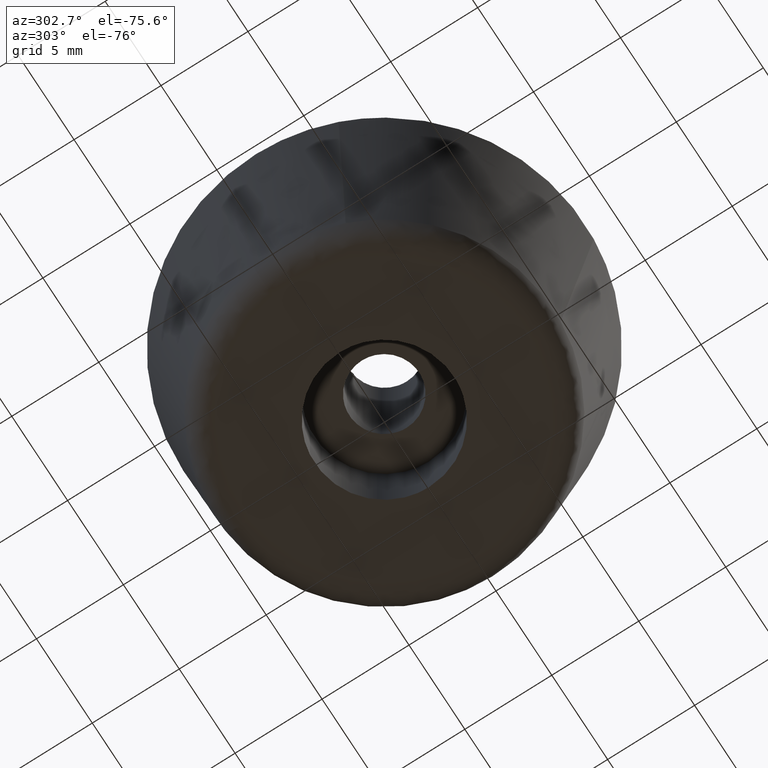
[diagram: clean part render]
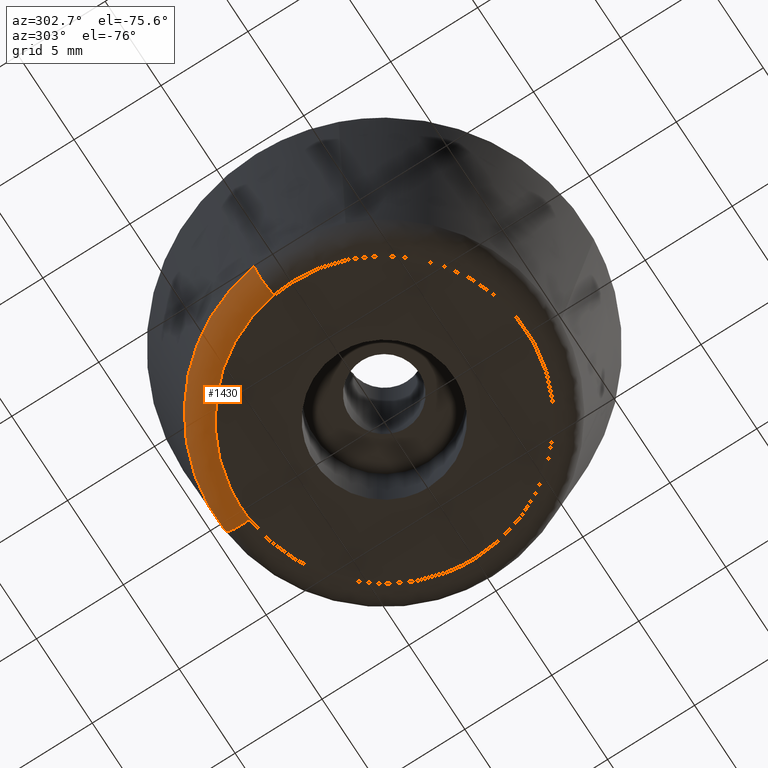
[diagram: same view with one face highlighted and labeled with its STEP entity id]
A machine part, auxiliary view. The second image highlights one B-rep face of the part: STEP entity #1430.
In plain terms, the highlighted face is a freeform B-spline surface patch.
Its self-contained STEP definition (entity closure, byte-faithful):
#851=CARTESIAN_POINT('',(0.783608279688495,9.652224928600838,1.287867999977965));
#852=VERTEX_POINT('',#851);
#866=CARTESIAN_POINT('',(-9.591609627675894,1.334358556978351,1.287867999980285));
#867=VERTEX_POINT('',#866);
#868=CARTESIAN_POINT('',(-9.591609627675894,1.334358556978351,1.287867999980285));
#869=CARTESIAN_POINT('',(-8.430032938582400,9.683980999999999,1.287868000000090));
#870=CARTESIAN_POINT('',(0.0,9.683980999999999,1.287868000000090));
#871=CARTESIAN_POINT('',(0.392447604251429,9.683981000000001,1.287868000000090));
#872=CARTESIAN_POINT('',(0.783608279688495,9.652224928600838,1.287867999977965));
#880=(BOUNDED_CURVE()B_SPLINE_CURVE(2,(#868,#869,#870,#871,#872),.UNSPECIFIED.,.F.,.U.)B_SPLINE_CURVE_WITH_KNOTS((3,2,3),(0.023792609107155,0.250000000000000,0.264091366876307),.UNSPECIFIED.)CURVE()GEOMETRIC_REPRESENTATION_ITEM()RATIONAL_B_SPLINE_CURVE((0.949556158169115,0.734981556648007,1.0,0.983490936792469,0.968842955716470))REPRESENTATION_ITEM(''));
#881=EDGE_CURVE('',#867,#852,#880,.T.);
#1310=CARTESIAN_POINT('',(0.663451194216494,8.172170102542422,2.551879E-016));
#1311=VERTEX_POINT('',#1310);
#1327=CARTESIAN_POINT('',(0.783608279688495,9.652224928600838,1.287867999977965));
#1328=CARTESIAN_POINT('',(0.768720897834433,9.468847133936658,7.234863E-010));
#1329=CARTESIAN_POINT('',(0.663451194216494,8.172170102542422,2.551879E-016));
#1337=(BOUNDED_CURVE()B_SPLINE_CURVE(2,(#1327,#1328,#1329),.UNSPECIFIED.,.F.,.U.)B_SPLINE_CURVE_WITH_KNOTS((3,3),(-1.712961397488156,-0.296657196544669),.UNSPECIFIED.)CURVE()GEOMETRIC_REPRESENTATION_ITEM()RATIONAL_B_SPLINE_CURVE((0.873017091049475,0.658429777458139,0.870122084024829))REPRESENTATION_ITEM(''));
#1338=EDGE_CURVE('',#852,#1311,#1337,.T.);
#1345=CARTESIAN_POINT('',(-8.120849442830764,1.129750413623381,2.494476E-016));
#1346=VERTEX_POINT('',#1345);
#1347=CARTESIAN_POINT('',(-9.591609627675894,1.334358556978351,1.287867999980285));
#1348=CARTESIAN_POINT('',(-9.409383432779494,1.309007746014928,5.342903E-010));
#1349=CARTESIAN_POINT('',(-8.120849442830764,1.129750413623381,2.494476E-016));
#1357=(BOUNDED_CURVE()B_SPLINE_CURVE(2,(#1347,#1348,#1349),.UNSPECIFIED.,.F.,.U.)B_SPLINE_CURVE_WITH_KNOTS((3,3),(-1.712961397491537,-0.296657196387747),.UNSPECIFIED.)CURVE()GEOMETRIC_REPRESENTATION_ITEM()RATIONAL_B_SPLINE_CURVE((0.893106813627465,0.673581452814167,0.890145187234654))REPRESENTATION_ITEM(''));
#1358=EDGE_CURVE('',#867,#1346,#1357,.T.);
#1393=CARTESIAN_POINT('',(-9.602097504469290,1.335817601773298,1.384066860049456));
#1394=CARTESIAN_POINT('',(-8.340613557154672,10.403591410381532,1.384066860049455));
#1395=CARTESIAN_POINT('',(0.784465110540318,9.662779084760640,1.384066860049456));
#1396=CARTESIAN_POINT('',(-9.488709347921555,1.320043350857955,-0.092702791309019));
#1397=CARTESIAN_POINT('',(-8.242121868720693,10.280738663786325,-0.092702791309019));
#1398=CARTESIAN_POINT('',(0.775201608194212,9.548674358471507,-0.092702791309019));
#1399=CARTESIAN_POINT('',(-8.024712286980067,1.116376074823758,0.003143702827020));
#1400=CARTESIAN_POINT('',(-6.970458700497325,8.694540727247412,0.003143702827020));
#1401=CARTESIAN_POINT('',(0.655597051407779,8.075425396561672,0.003143702827020));
#1409=(BOUNDED_SURFACE()B_SPLINE_SURFACE(2,2,((#1393,#1396,#1399),(#1394,#1397,#1400),(#1395,#1398,#1401)),.UNSPECIFIED.,.F.,.F.,.U.)B_SPLINE_SURFACE_WITH_KNOTS((3,3),(3,3),(0.0,15.415757848506001),(0.0,2.463144099657792),.UNSPECIFIED.)GEOMETRIC_REPRESENTATION_ITEM()RATIONAL_B_SPLINE_SURFACE(((0.916125459021371,0.650710697843882,0.912868050727602),(0.658531601872839,0.467745497068354,0.656190103467216),(0.895517950449488,0.636073481781840,0.892333814946771)))REPRESENTATION_ITEM('')SURFACE());
#1410=CARTESIAN_POINT('',(-8.120849442830764,1.129750413623380,2.494476E-016));
#1411=CARTESIAN_POINT('',(-7.137386835664303,8.199056754600251,0.0));
#1412=CARTESIAN_POINT('',(0.0,8.199056754600250,0.0));
#1413=CARTESIAN_POINT('',(0.332270393840751,8.199056754600250,0.0));
#1414=CARTESIAN_POINT('',(0.663451194216494,8.172170102542422,2.551879E-016));
#1422=(BOUNDED_CURVE()B_SPLINE_CURVE(2,(#1410,#1411,#1412,#1413,#1414),.UNSPECIFIED.,.F.,.U.)B_SPLINE_CURVE_WITH_KNOTS((3,2,3),(0.023792609108029,0.250000000000000,0.264091366877822),.UNSPECIFIED.)CURVE()GEOMETRIC_REPRESENTATION_ITEM()RATIONAL_B_SPLINE_CURVE((0.949556158167457,0.734981556649031,1.0,0.983490936790693,0.968842955713318))REPRESENTATION_ITEM(''));
#1423=EDGE_CURVE('',#1346,#1311,#1422,.T.);
#1424=ORIENTED_EDGE('',*,*,#1423,.F.);
#1425=ORIENTED_EDGE('',*,*,#1358,.F.);
#1426=ORIENTED_EDGE('',*,*,#881,.T.);
#1427=ORIENTED_EDGE('',*,*,#1338,.T.);
#1428=EDGE_LOOP('',(#1424,#1425,#1426,#1427));
#1429=FACE_OUTER_BOUND('',#1428,.T.);
#1430=ADVANCED_FACE('',(#1429),#1409,.T.);